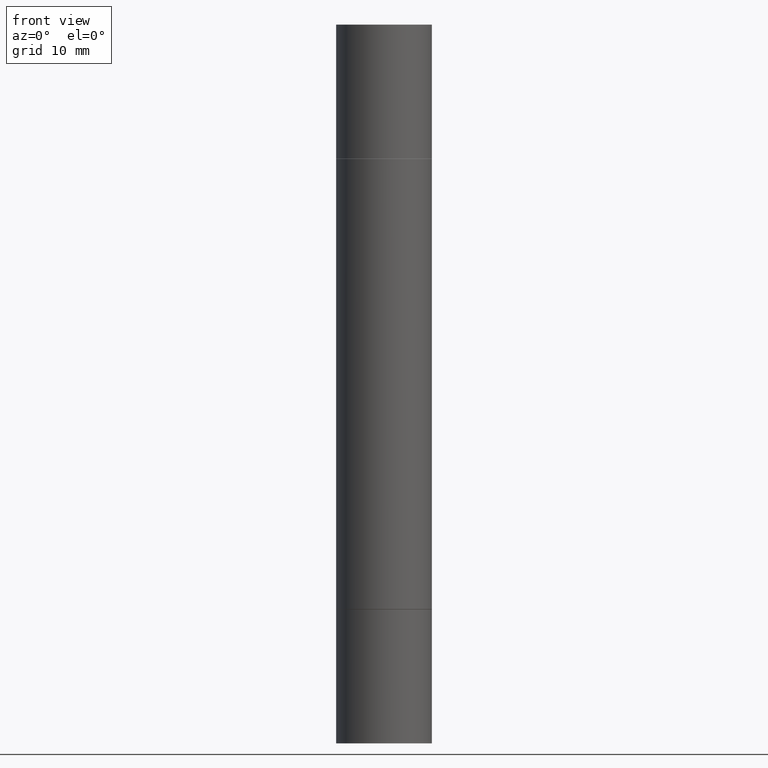
[diagram: clean part render]
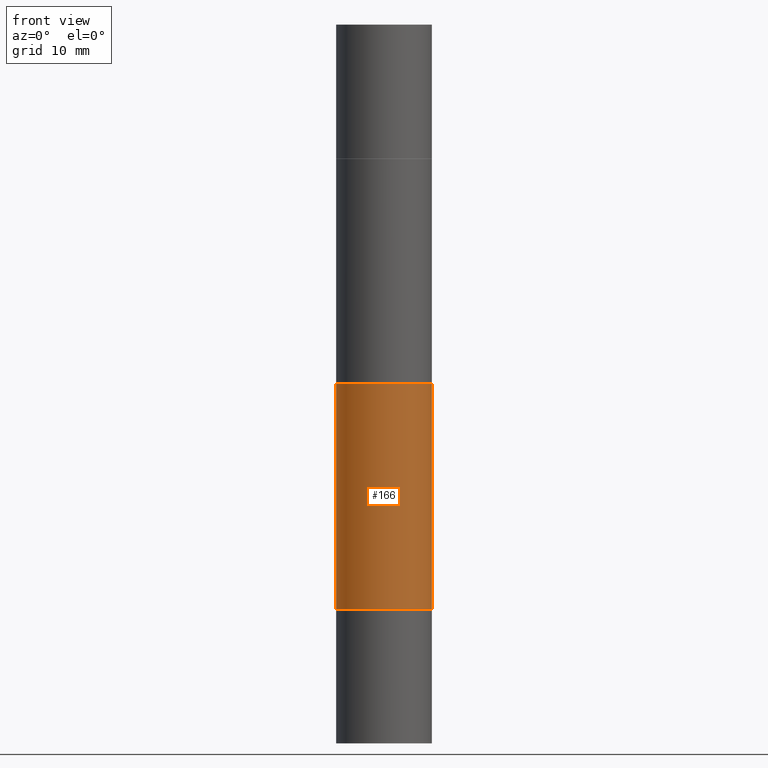
[diagram: same view with one face highlighted and labeled with its STEP entity id]
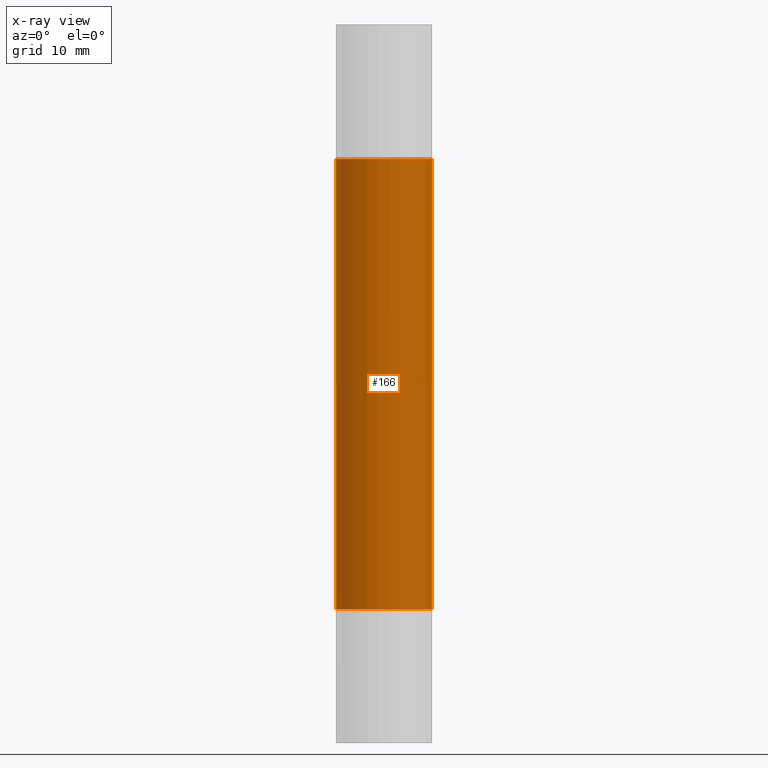
[diagram: x-ray of the same camera — body ghosted, the highlighted face saturated]
A machine part, front view. The second image highlights one B-rep face of the part: STEP entity #166.
The next image is the same camera in x-ray: the body ghosted, the highlighted face saturated — about 0% of this face is hidden behind the body in this view.
In plain terms, the highlighted cylindrical surface (partial cylindrical patch) has radius 5 mm, axis along (-0, -0, -1).
Its self-contained STEP definition (entity closure, byte-faithful):
#4 = EDGE_CURVE ( 'NONE', #501, #244, #326, .T. ) ;
#35 = CIRCLE ( 'NONE', #422, 0.1968500000000000250 ) ;
#52 = LINE ( 'NONE', #100, #377 ) ;
#56 = FACE_OUTER_BOUND ( 'NONE', #475, .T. ) ;
#63 = DIRECTION ( 'NONE',  ( -2.445468806185136597E-29, 3.491481338843145583E-15, 1.000000000000000000 ) ) ;
#71 = CARTESIAN_POINT ( 'NONE',  ( 5.870592416128037625E-29, -8.381650102026854256E-15, -2.400599999999999401 ) ) ;
#91 = EDGE_CURVE ( 'NONE', #258, #335, #52, .T. ) ;
#100 = CARTESIAN_POINT ( 'NONE',  ( 0.1968499999999998307, -1.168632265538556411E-14, -2.952799999999998981 ) ) ;
#119 = DIRECTION ( 'NONE',  ( 1.000000000000000000, -6.982962677686262766E-15, 0.000000000000000000 ) ) ;
#122 = DIRECTION ( 'NONE',  ( -2.445468806185136877E-29, -3.492890411551753071E-15, -1.000000000000000000 ) ) ;
#166 = ADVANCED_FACE ( 'NONE', ( #56 ), #203, .T. ) ;
#203 = CYLINDRICAL_SURFACE ( 'NONE', #588, 0.1968499999999998307 ) ;
#225 = CARTESIAN_POINT ( 'NONE',  ( -0.1968500000000000250, -3.804334017806689102E-15, -2.400599999999999401 ) ) ;
#244 = VERTEX_POINT ( 'NONE', #225 ) ;
#247 = ORIENTED_EDGE ( 'NONE', *, *, #260, .T. ) ;
#252 = ORIENTED_EDGE ( 'NONE', *, *, #4, .T. ) ;
#258 = VERTEX_POINT ( 'NONE', #283 ) ;
#260 = EDGE_CURVE ( 'NONE', #244, #335, #474, .T. ) ;
#280 = DIRECTION ( 'NONE',  ( 1.000000000000000000, -6.982962677686267499E-15, 0.000000000000000000 ) ) ;
#283 = CARTESIAN_POINT ( 'NONE',  ( 0.1968500000000000250, -3.301289933414429871E-15, -0.5521999999999996911 ) ) ;
#326 = LINE ( 'NONE', #346, #641 ) ;
#335 = VERTEX_POINT ( 'NONE', #540 ) ;
#337 = CARTESIAN_POINT ( 'NONE',  ( -0.1968500000000000250, -5.762046994505618475E-16, -0.5521999999999996911 ) ) ;
#346 = CARTESIAN_POINT ( 'NONE',  ( -0.1968499999999998307, -8.961237421421701017E-15, -2.952799999999998981 ) ) ;
#351 = ORIENTED_EDGE ( 'NONE', *, *, #91, .F. ) ;
#368 = DIRECTION ( 'NONE',  ( 1.000000000000000000, -6.982962677686264344E-15, 0.000000000000000000 ) ) ;
#377 = VECTOR ( 'NONE', #457, 39.37007874015748143 ) ;
#422 = AXIS2_PLACEMENT_3D ( 'NONE', #646, #544, #280 ) ;
#457 = DIRECTION ( 'NONE',  ( -2.445468806185136877E-29, -3.492890411551753071E-15, -1.000000000000000000 ) ) ;
#473 = DIRECTION ( 'NONE',  ( -2.445468806185136597E-29, -3.492890411551752677E-15, -1.000000000000000000 ) ) ;
#474 = CIRCLE ( 'NONE', #576, 0.1968500000000000250 ) ;
#475 = EDGE_LOOP ( 'NONE', ( #599, #252, #247, #351 ) ) ;
#501 = VERTEX_POINT ( 'NONE', #337 ) ;
#540 = CARTESIAN_POINT ( 'NONE',  ( 0.1968500000000000250, -9.756246305129394287E-15, -2.400599999999999401 ) ) ;
#544 = DIRECTION ( 'NONE',  ( 2.445468806185136597E-29, 3.492890411551752677E-15, 1.000000000000000000 ) ) ;
#575 = CARTESIAN_POINT ( 'NONE',  ( 0.000000000000000000, -1.031172645228302408E-14, -2.952799999999998981 ) ) ;
#576 = AXIS2_PLACEMENT_3D ( 'NONE', #71, #63, #119 ) ;
#583 = EDGE_CURVE ( 'NONE', #501, #258, #35, .T. ) ;
#588 = AXIS2_PLACEMENT_3D ( 'NONE', #575, #473, #368 ) ;
#599 = ORIENTED_EDGE ( 'NONE', *, *, #583, .F. ) ;
#641 = VECTOR ( 'NONE', #122, 39.37007874015748143 ) ;
#646 = CARTESIAN_POINT ( 'NONE',  ( 5.870592416128037625E-29, -1.926693730311889446E-15, -0.5521999999999996911 ) ) ;